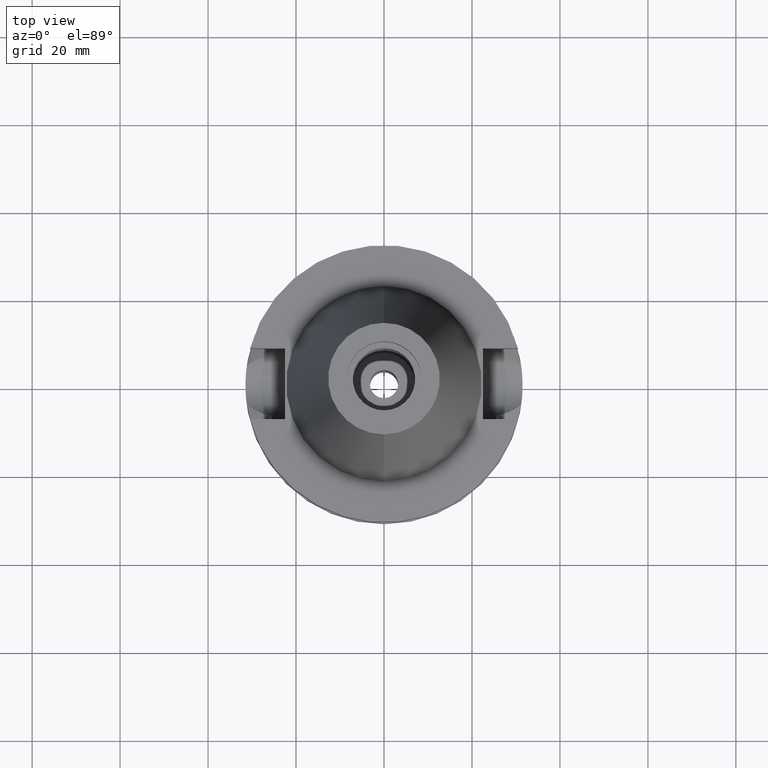
[diagram: clean part render]
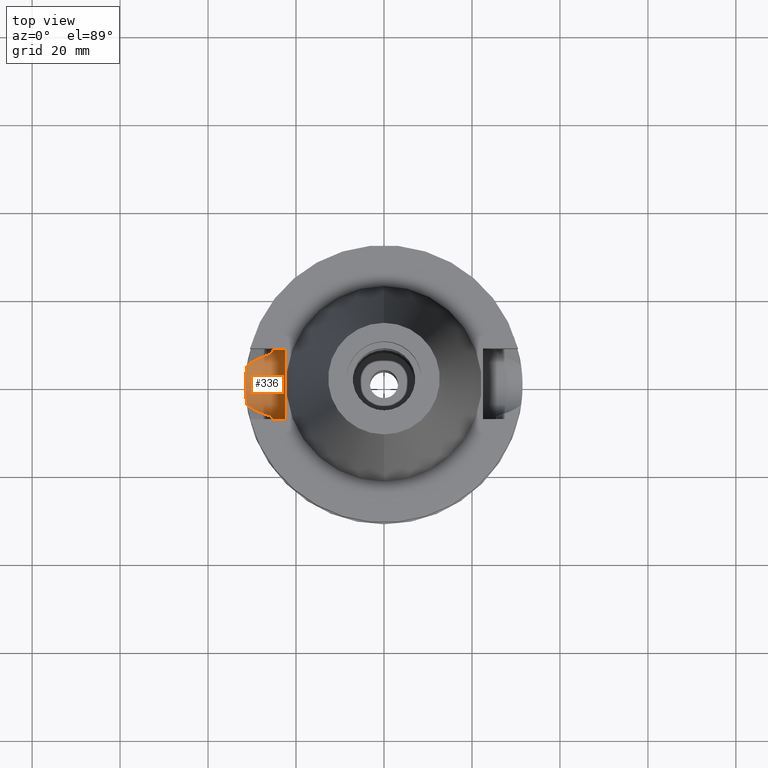
[diagram: same view with one face highlighted and labeled with its STEP entity id]
A machine part, top view. The second image highlights one B-rep face of the part: STEP entity #336.
In plain terms, the highlighted cylindrical surface (edge-blend (fillet) strip) has radius 8.05 mm, axis along (-1, 0, 0).
Its self-contained STEP definition (entity closure, byte-faithful):
#31 = DIRECTION ( 'NONE',  ( 1.000000000000000000, 0.0000000000000000000, 0.0000000000000000000 ) ) ;
#39 = ORIENTED_EDGE ( 'NONE', *, *, #796, .T. ) ;
#44 = CARTESIAN_POINT ( 'NONE',  ( -31.43649054899053752, -2.003082981860745182, -22.74794518897274642 ) ) ;
#46 = EDGE_CURVE ( 'NONE', #311, #2104, #299, .T. ) ;
#64 = CARTESIAN_POINT ( 'NONE',  ( -30.50112359417796171, -4.970689140172338760, -21.28940787407175605 ) ) ;
#81 = CARTESIAN_POINT ( 'NONE',  ( -31.47072699418135855, -1.368170334993582982, -22.88533600626599807 ) ) ;
#118 = CARTESIAN_POINT ( 'NONE',  ( -25.24772266958000344, 8.050000000000000711, -14.94999999999999929 ) ) ;
#140 = CARTESIAN_POINT ( 'NONE',  ( -25.29454073181652873, 7.902031869267963415, -16.48858678625175500 ) ) ;
#145 = B_SPLINE_CURVE_WITH_KNOTS ( 'NONE', 3,
 ( #2770, #536, #1734, #2980, #1746, #290, #1499, #597, #2003, #2995, #307, #2457, #2736 ),
 .UNSPECIFIED., .F., .F.,
 ( 4, 2, 2, 1, 2, 2, 4 ),
 ( 0.0000000000000000000, 0.2500000000000060507, 0.3750000000000089928, 0.4375000000000095479, 0.4687500000000093814, 0.5000000000000092149, 1.000000000000000000 ),
 .UNSPECIFIED. ) ;
#152 = CARTESIAN_POINT ( 'NONE',  ( -25.32418278270155554, -7.806361859899611844, -16.91561764571761373 ) ) ;
#158 = CARTESIAN_POINT ( 'NONE',  ( -25.31953474941675353, 7.821426996750497906, -16.85478786807099993 ) ) ;
#166 = VERTEX_POINT ( 'NONE', #963 ) ;
#181 = EDGE_CURVE ( 'NONE', #311, #2578, #1903, .T. ) ;
#233 = ORIENTED_EDGE ( 'NONE', *, *, #181, .F. ) ;
#277 = CARTESIAN_POINT ( 'NONE',  ( -31.49254817246029248, -0.7824343147952970146, -22.97160126998486263 ) ) ;
#290 = CARTESIAN_POINT ( 'NONE',  ( -28.24957080510539953, 6.153788910806230028, -20.14042599201884443 ) ) ;
#296 = CARTESIAN_POINT ( 'NONE',  ( -31.17899877608999759, -4.485536235554000051, -21.63449434733000132 ) ) ;
#299 = B_SPLINE_CURVE_WITH_KNOTS ( 'NONE', 3,
 ( #118, #2029, #2794, #609, #371, #140, #2050, #2313, #3041, #158, #865, #1111, #627, #1825 ),
 .UNSPECIFIED., .F., .F.,
 ( 4, 2, 2, 1, 1, 2, 2, 4 ),
 ( 0.0000000000000000000, 0.2500000000000000555, 0.3749999999999995004, 0.4374999999999992784, 0.4687499999999990008, 0.4843749999999976130, 0.4999999999999962252, 1.000000000000000000 ),
 .UNSPECIFIED. ) ;
#307 = CARTESIAN_POINT ( 'NONE',  ( -29.75857649111524950, 5.446858037224162175, -20.91103993081663859 ) ) ;
#311 = VERTEX_POINT ( 'NONE', #1494 ) ;
#336 = ADVANCED_FACE ( 'NONE', ( #1948 ), #1042, .F. ) ;
#371 = CARTESIAN_POINT ( 'NONE',  ( -25.28049531314556475, 7.946998968790953910, -16.24427015613227709 ) ) ;
#381 = CARTESIAN_POINT ( 'NONE',  ( -31.28475554409203951, -3.750420082870100646, -22.12778373750569116 ) ) ;
#402 = CARTESIAN_POINT ( 'NONE',  ( -25.37572056917240459, -7.637749951106905577, -17.49806859187482644 ) ) ;
#497 = DIRECTION ( 'NONE',  ( 1.000000000000000000, 1.551559937893000172E-14, -3.620306521749999889E-14 ) ) ;
#531 = CARTESIAN_POINT ( 'NONE',  ( -22.50000000000000000, -8.050000000000000711, -14.94999999999999929 ) ) ;
#536 = CARTESIAN_POINT ( 'NONE',  ( -26.17291654574146875, 6.921617028666480209, -19.07713972076425080 ) ) ;
#542 = CARTESIAN_POINT ( 'NONE',  ( -22.50000000000000000, 1.807578675540999863E-14, -14.94999999999999929 ) ) ;
#547 = CARTESIAN_POINT ( 'NONE',  ( -22.50000000000000000, 1.807578675540999863E-14, -14.94999999999999929 ) ) ;
#554 = CARTESIAN_POINT ( 'NONE',  ( -31.40736225802089621, 2.414206324123219893, -22.62949227793460949 ) ) ;
#595 = VERTEX_POINT ( 'NONE', #681 ) ;
#597 = CARTESIAN_POINT ( 'NONE',  ( -28.61779285636010073, 5.989666203958305069, -20.32848408072327473 ) ) ;
#609 = CARTESIAN_POINT ( 'NONE',  ( -25.27269230277281409, 7.971779397697597247, -16.08139026072851863 ) ) ;
#627 = CARTESIAN_POINT ( 'NONE',  ( -25.43788104199107991, 7.435525278068985777, -18.11666136646456593 ) ) ;
#681 = CARTESIAN_POINT ( 'NONE',  ( -25.53175183775000079, -7.097862220092999941, -18.74774300138999905 ) ) ;
#767 = CARTESIAN_POINT ( 'NONE',  ( -31.39031131244612993, 2.628187298584836906, -22.55983422582648856 ) ) ;
#796 = EDGE_CURVE ( 'NONE', #2362, #1401, #3102, .T. ) ;
#804 = CARTESIAN_POINT ( 'NONE',  ( -31.41630068311782864, -2.294990303377674845, -22.66593676115104117 ) ) ;
#818 = CARTESIAN_POINT ( 'NONE',  ( -31.27838846370804760, 3.744638242329132449, -22.08718706858015324 ) ) ;
#843 = CARTESIAN_POINT ( 'NONE',  ( -27.92164969943562625, -6.324364155677592692, -19.97298064498445669 ) ) ;
#860 = EDGE_CURVE ( 'NONE', #1158, #166, #2317, .T. ) ;
#865 = CARTESIAN_POINT ( 'NONE',  ( -25.32120835926359348, 7.816004821883111298, -16.87689728790726207 ) ) ;
#887 = CARTESIAN_POINT ( 'NONE',  ( -25.48481574508639014, -7.266696248285767545, -18.43219751299012188 ) ) ;
#914 = CARTESIAN_POINT ( 'NONE',  ( -25.53175183775000079, -7.097862220092999941, -18.74774300138999905 ) ) ;
#963 = CARTESIAN_POINT ( 'NONE',  ( -25.24772266958000344, -8.050000000000000711, -14.94999999999999929 ) ) ;
#976 = DIRECTION ( 'NONE',  ( 0.0000000000000000000, 0.0000000000000000000, -1.000000000000000000 ) ) ;
#990 = DIRECTION ( 'NONE',  ( 0.0000000000000000000, 0.0000000000000000000, -1.000000000000000000 ) ) ;
#1015 = CARTESIAN_POINT ( 'NONE',  ( -25.53175183775000079, 7.097862220092999941, -18.74774300138999905 ) ) ;
#1034 = CARTESIAN_POINT ( 'NONE',  ( -28.91268421435298208, -5.850942904609513384, -20.47907125205792056 ) ) ;
#1042 = CYLINDRICAL_SURFACE ( 'NONE', #2955, 8.050000000000000711 ) ;
#1079 = CARTESIAN_POINT ( 'NONE',  ( -29.40334533402910111, -5.604021732684188351, -20.72957428333155150 ) ) ;
#1085 = DIRECTION ( 'NONE',  ( -1.000000000000000000, 1.616208268639000174E-14, -1.034373291929000154E-14 ) ) ;
#1111 = CARTESIAN_POINT ( 'NONE',  ( -25.36817428579389855, 7.663739401594953371, -17.48828308917280339 ) ) ;
#1154 = CARTESIAN_POINT ( 'NONE',  ( -25.32843378481427621, -7.792569787453148322, -16.96958526498518083 ) ) ;
#1158 = VERTEX_POINT ( 'NONE', #531 ) ;
#1196 = CARTESIAN_POINT ( 'NONE',  ( -31.17899877608999759, 4.485536235554000051, -21.63449434733000132 ) ) ;
#1236 = CARTESIAN_POINT ( 'NONE',  ( -31.46164955142648267, -1.563742733639825522, -22.84919402122098830 ) ) ;
#1246 = CARTESIAN_POINT ( 'NONE',  ( -31.23221634381091505, 4.115620490451154190, -21.88272112299422645 ) ) ;
#1260 = CARTESIAN_POINT ( 'NONE',  ( -28.96690750585106144, -5.824643067849575750, -20.50675999878175304 ) ) ;
#1297 = CARTESIAN_POINT ( 'NONE',  ( -31.17899877608999759, -4.485536235554000051, -21.63449434733000132 ) ) ;
#1335 = CARTESIAN_POINT ( 'NONE',  ( -25.24772266958000344, -8.050000000000000711, -14.94999999999999929 ) ) ;
#1374 = CARTESIAN_POINT ( 'NONE',  ( -25.27268923712989235, -7.973297925130424346, -16.24528153449690393 ) ) ;
#1401 = VERTEX_POINT ( 'NONE', #3020 ) ;
#1465 = CARTESIAN_POINT ( 'NONE',  ( -31.47150441655145059, 1.550750680616590715, -22.89093377968180221 ) ) ;
#1494 = CARTESIAN_POINT ( 'NONE',  ( -25.24772266958000344, 8.050000000000000711, -14.94999999999999929 ) ) ;
#1499 = CARTESIAN_POINT ( 'NONE',  ( -28.43675414381653255, 6.072261174700262387, -20.23603577456972502 ) ) ;
#1528 = DIRECTION ( 'NONE',  ( -1.000000000000000000, 0.0000000000000000000, 0.0000000000000000000 ) ) ;
#1578 = ORIENTED_EDGE ( 'NONE', *, *, #860, .F. ) ;
#1632 = CIRCLE ( 'NONE', #1676, 8.050000000000000711 ) ;
#1665 = EDGE_LOOP ( 'NONE', ( #2747, #1578, #2834, #233, #2369, #2315, #39, #1755 ) ) ;
#1672 = EDGE_CURVE ( 'NONE', #1158, #2578, #1632, .T. ) ;
#1676 = AXIS2_PLACEMENT_3D ( 'NONE', #542, #31, #990 ) ;
#1705 = EDGE_CURVE ( 'NONE', #1401, #595, #2795, .T. ) ;
#1717 = CARTESIAN_POINT ( 'NONE',  ( -31.41060181519636529, 2.371771208734530401, -22.64270402106513203 ) ) ;
#1734 = CARTESIAN_POINT ( 'NONE',  ( -26.77038613431905745, 6.728085428682077485, -19.38370790967969981 ) ) ;
#1737 = CARTESIAN_POINT ( 'NONE',  ( -31.17899877608999759, 4.485536235554000051, -21.63449434733000132 ) ) ;
#1739 = CARTESIAN_POINT ( 'NONE',  ( -29.71817043639970635, -5.435098059647167190, -20.89023257034575565 ) ) ;
#1746 = CARTESIAN_POINT ( 'NONE',  ( -27.86701129279300915, 6.315183538178430922, -19.94494911171929274 ) ) ;
#1749 = CARTESIAN_POINT ( 'NONE',  ( -31.41451779209810624, -2.319272271067412738, -22.65867282528824589 ) ) ;
#1754 = CARTESIAN_POINT ( 'NONE',  ( -25.53175183775000079, -7.097862220092999941, -18.74774300138999905 ) ) ;
#1755 = ORIENTED_EDGE ( 'NONE', *, *, #1705, .T. ) ;
#1825 = CARTESIAN_POINT ( 'NONE',  ( -25.53175183775000079, 7.097862220092999941, -18.74774300138999905 ) ) ;
#1834 = CARTESIAN_POINT ( 'NONE',  ( -25.34387076451231735, -7.742375422224091253, -17.15652271135759221 ) ) ;
#1862 = CARTESIAN_POINT ( 'NONE',  ( -25.33291622355770656, -7.778016509996059646, -17.02546682202350681 ) ) ;
#1903 = LINE ( 'NONE', #3118, #2120 ) ;
#1925 = VECTOR ( 'NONE', #1085, 1000.000000000000000 ) ;
#1948 = FACE_OUTER_BOUND ( 'NONE', #1665, .T. ) ;
#1992 = CARTESIAN_POINT ( 'NONE',  ( -31.41895388234278030, -2.258557297392222107, -22.67674196858710545 ) ) ;
#2003 = CARTESIAN_POINT ( 'NONE',  ( -28.73711985890745879, 5.934384893717068898, -20.38941799962611867 ) ) ;
#2029 = CARTESIAN_POINT ( 'NONE',  ( -25.24772266957999989, 8.050000000000018474, -15.26998397948727515 ) ) ;
#2032 = CARTESIAN_POINT ( 'NONE',  ( -22.50000000000000000, 8.050000000000000711, -14.94999999999999929 ) ) ;
#2050 = CARTESIAN_POINT ( 'NONE',  ( -25.30214866692995912, 7.877599670889216199, -16.61074386546507498 ) ) ;
#2087 = CARTESIAN_POINT ( 'NONE',  ( -25.39163787691447993, -7.584845155549849061, -17.65187522139906662 ) ) ;
#2104 = VERTEX_POINT ( 'NONE', #1015 ) ;
#2112 = CARTESIAN_POINT ( 'NONE',  ( -25.24772266958001055, -8.049999999999982947, -15.58995917010235566 ) ) ;
#2120 = VECTOR ( 'NONE', #497, 1000.000000000000000 ) ;
#2147 = EDGE_CURVE ( 'NONE', #595, #166, #2801, .T. ) ;
#2209 = CARTESIAN_POINT ( 'NONE',  ( -30.85622702757492064, -4.730413040921432888, -21.47017319951745407 ) ) ;
#2222 = CARTESIAN_POINT ( 'NONE',  ( -31.41200430603226934, 2.353176799722469514, -22.64842219027531200 ) ) ;
#2260 = CARTESIAN_POINT ( 'NONE',  ( -31.36267722272063807, -3.014176567383779481, -22.44730567392495857 ) ) ;
#2305 = CARTESIAN_POINT ( 'NONE',  ( -29.24290168738611939, -5.687681247606961144, -20.64767886897175231 ) ) ;
#2307 = CARTESIAN_POINT ( 'NONE',  ( -25.44392024329455637, -7.408267248950049400, -18.11703320962187291 ) ) ;
#2313 = CARTESIAN_POINT ( 'NONE',  ( -25.31204873634039387, 7.845649843911632892, -16.75314471823017826 ) ) ;
#2315 = ORIENTED_EDGE ( 'NONE', *, *, #2583, .T. ) ;
#2317 = LINE ( 'NONE', #3078, #1925 ) ;
#2362 = VERTEX_POINT ( 'NONE', #1196 ) ;
#2369 = ORIENTED_EDGE ( 'NONE', *, *, #46, .T. ) ;
#2426 = CARTESIAN_POINT ( 'NONE',  ( -31.40242035841600554, 2.478036592959342865, -22.60933024857140694 ) ) ;
#2443 = CARTESIAN_POINT ( 'NONE',  ( -31.49988075799869236, -0.3932938145242131367, -22.99952906081512083 ) ) ;
#2457 = CARTESIAN_POINT ( 'NONE',  ( -30.53344319890117120, 4.975299011121801840, -21.30584590176887616 ) ) ;
#2473 = CARTESIAN_POINT ( 'NONE',  ( -31.42499671940192485, -2.173479871770465977, -22.70131995672813474 ) ) ;
#2568 = CARTESIAN_POINT ( 'NONE',  ( -25.35410982913618483, -7.708872424742952312, -17.26994189693849791 ) ) ;
#2578 = VERTEX_POINT ( 'NONE', #2032 ) ;
#2583 = EDGE_CURVE ( 'NONE', #2104, #2362, #145, .T. ) ;
#2673 = CARTESIAN_POINT ( 'NONE',  ( -31.35488044589882506, 3.022543741488756375, -22.41338040345560501 ) ) ;
#2685 = CARTESIAN_POINT ( 'NONE',  ( -31.37894136408601753, 2.758863631978538677, -22.51306821925603785 ) ) ;
#2703 = CARTESIAN_POINT ( 'NONE',  ( -31.44532781230132557, -1.856703196143867363, -22.78359225527505671 ) ) ;
#2723 = CARTESIAN_POINT ( 'NONE',  ( -31.33707847181808148, 3.201445231375826150, -22.33871180483826890 ) ) ;
#2724 = CARTESIAN_POINT ( 'NONE',  ( -29.07791139755662968, -5.770038631014452690, -20.56343947580358744 ) ) ;
#2736 = CARTESIAN_POINT ( 'NONE',  ( -31.17899877608999759, 4.485536235554000051, -21.63449434733000132 ) ) ;
#2747 = ORIENTED_EDGE ( 'NONE', *, *, #2147, .T. ) ;
#2770 = CARTESIAN_POINT ( 'NONE',  ( -25.53175183775000079, 7.097862220092999941, -18.74774300138999905 ) ) ;
#2788 = CARTESIAN_POINT ( 'NONE',  ( -31.41354641493285271, -2.332384000908453991, -22.65471317283217090 ) ) ;
#2794 = CARTESIAN_POINT ( 'NONE',  ( -25.25396507787820255, 8.030899033917146213, -15.59374176308273974 ) ) ;
#2795 = B_SPLINE_CURVE_WITH_KNOTS ( 'NONE', 3,
 ( #296, #2209, #64, #2967, #1739, #1079, #2305, #2724, #1260, #1034, #843, #2988, #1754 ),
 .UNSPECIFIED., .F., .F.,
 ( 4, 2, 2, 1, 2, 2, 4 ),
 ( 0.0000000000000000000, 0.2499999999999976685, 0.3749999999999967248, 0.4374999999999960032, 0.4687499999999963363, 0.4999999999999966693, 1.000000000000000000 ),
 .UNSPECIFIED. ) ;
#2801 = B_SPLINE_CURVE_WITH_KNOTS ( 'NONE', 3,
 ( #914, #887, #2307, #2087, #402, #2568, #1834, #1862, #1154, #2826, #152, #1374, #2112, #1335 ),
 .UNSPECIFIED., .F., .F.,
 ( 4, 2, 2, 1, 1, 2, 2, 4 ),
 ( 0.0000000000000000000, 0.2500000000000072164, 0.3750000000000107137, 0.4375000000000127121, 0.4687500000000124900, 0.4843750000000138223, 0.5000000000000150990, 1.000000000000000000 ),
 .UNSPECIFIED. ) ;
#2826 = CARTESIAN_POINT ( 'NONE',  ( -25.32549268443484891, -7.802113524031581981, -16.93239579625168645 ) ) ;
#2834 = ORIENTED_EDGE ( 'NONE', *, *, #1672, .T. ) ;
#2942 = CARTESIAN_POINT ( 'NONE',  ( -31.50023391467115985, 0.7573065430459110514, -23.00092412718318258 ) ) ;
#2955 = AXIS2_PLACEMENT_3D ( 'NONE', #547, #1528, #976 ) ;
#2967 = CARTESIAN_POINT ( 'NONE',  ( -29.91997091675962395, -5.320343540365342072, -20.99315979376767416 ) ) ;
#2980 = CARTESIAN_POINT ( 'NONE',  ( -27.60104783806462336, 6.420568128767468963, -19.80895099222617262 ) ) ;
#2988 = CARTESIAN_POINT ( 'NONE',  ( -26.81410428988007411, -6.745365504996045480, -19.40654827490708101 ) ) ;
#2995 = CARTESIAN_POINT ( 'NONE',  ( -28.79788753783334698, 5.905781655950244513, -20.42044829908146042 ) ) ;
#3020 = CARTESIAN_POINT ( 'NONE',  ( -31.17899877608999759, -4.485536235554000051, -21.63449434733000132 ) ) ;
#3041 = CARTESIAN_POINT ( 'NONE',  ( -25.31651108289732122, 7.831215265782923929, -16.81413640831794254 ) ) ;
#3078 = CARTESIAN_POINT ( 'NONE',  ( -22.50000000000000000, -8.050000000000000711, -14.94999999999999929 ) ) ;
#3102 = B_SPLINE_CURVE_WITH_KNOTS ( 'NONE', 3,
 ( #1737, #1246, #818, #2723, #2673, #2685, #767, #2426, #554, #1717, #2222, #1465, #2942, #2443, #277, #81, #1236, #2703, #44, #2473, #1992, #804, #1749, #2788, #2260, #381, #1297 ),
 .UNSPECIFIED., .F., .F.,
 ( 4, 2, 2, 1, 1, 2, 2, 2, 2, 2, 1, 1, 1, 2, 2, 4 ),
 ( 0.0000000000000000000, 0.1250000000000005829, 0.1875000000000008882, 0.2187500000000010270, 0.2343750000000009992, 0.2421875000000009992, 0.2500000000000009437, 0.4999999999999983347, 0.6249999999999970024, 0.6874999999999963363, 0.7187499999999958922, 0.7343749999999958922, 0.7421874999999957812, 0.7460937499999956701, 0.7499999999999955591, 1.000000000000000000 ),
 .UNSPECIFIED. ) ;
#3118 = CARTESIAN_POINT ( 'NONE',  ( -25.24772266958000344, 8.050000000000000711, -14.94999999999999929 ) ) ;